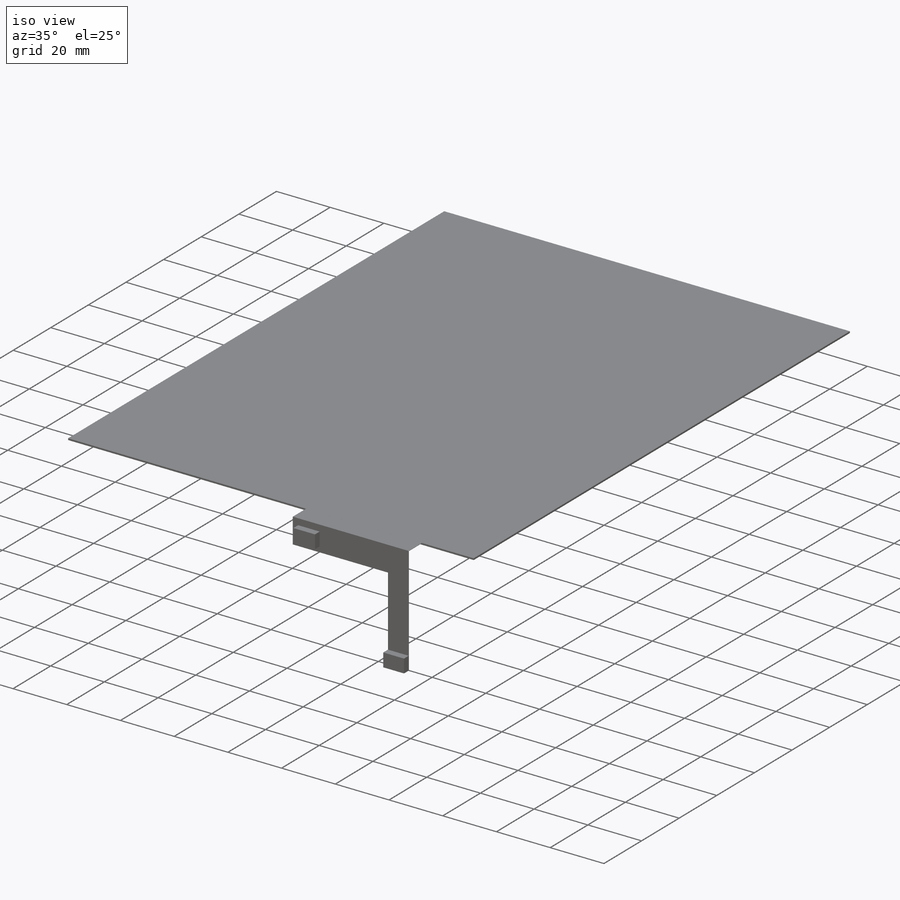
[diagram: iso view]
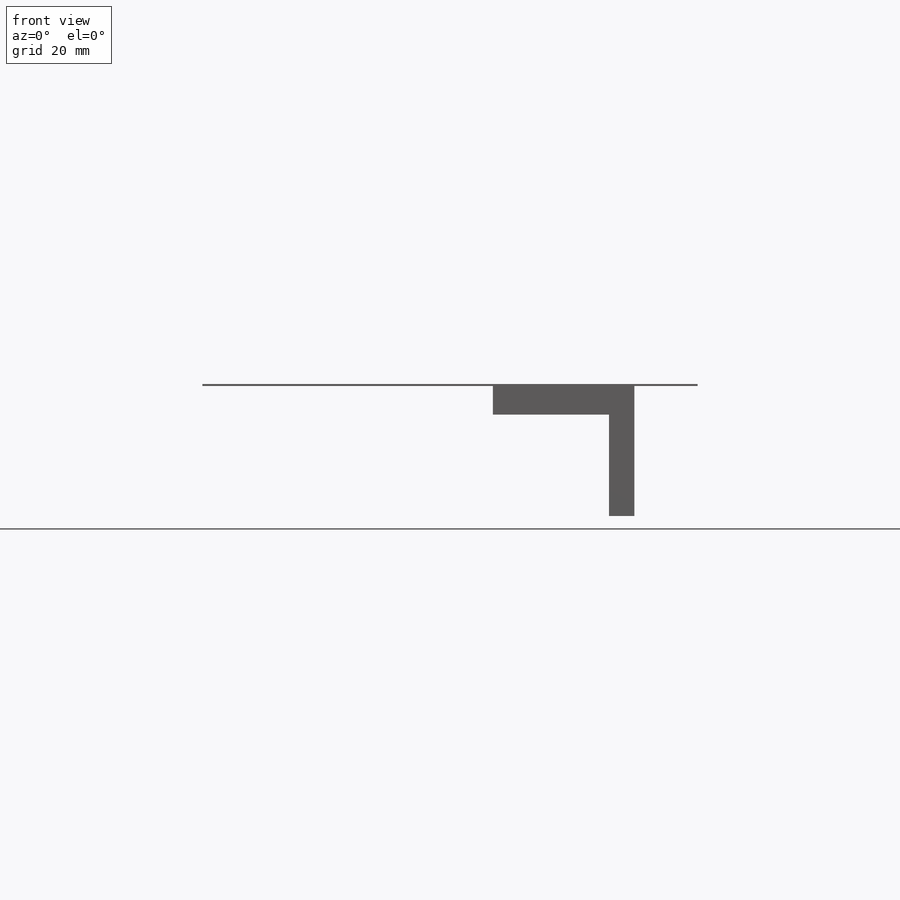
[diagram: front view]
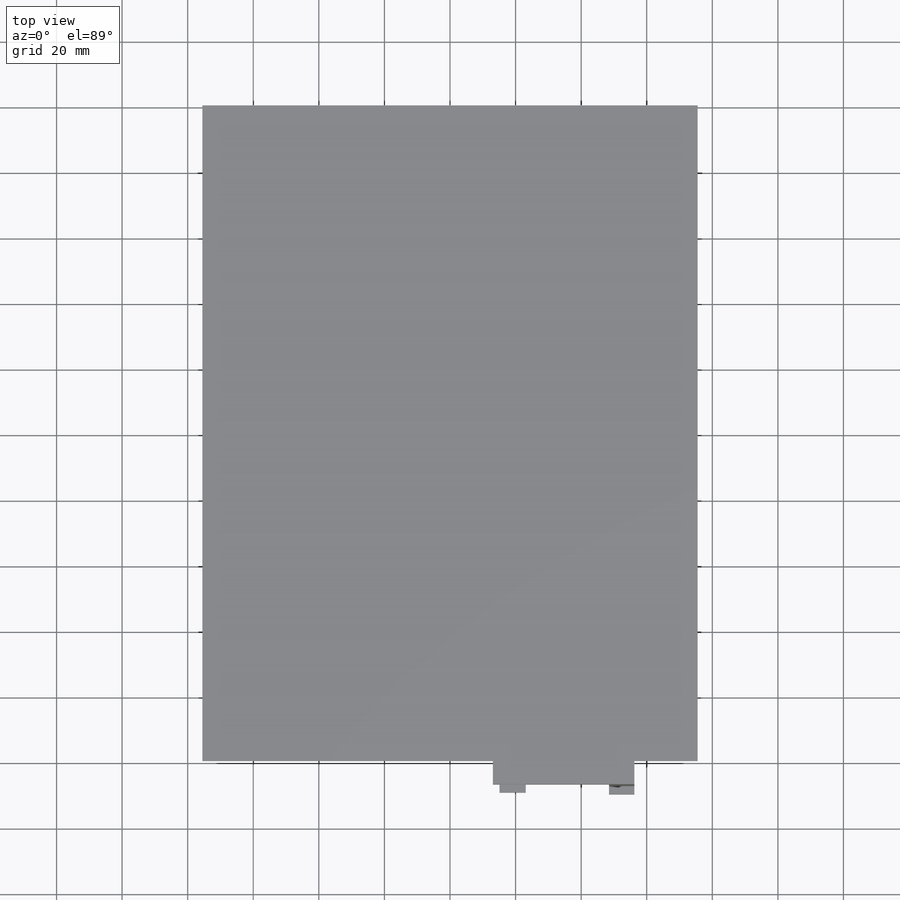
[diagram: top view]
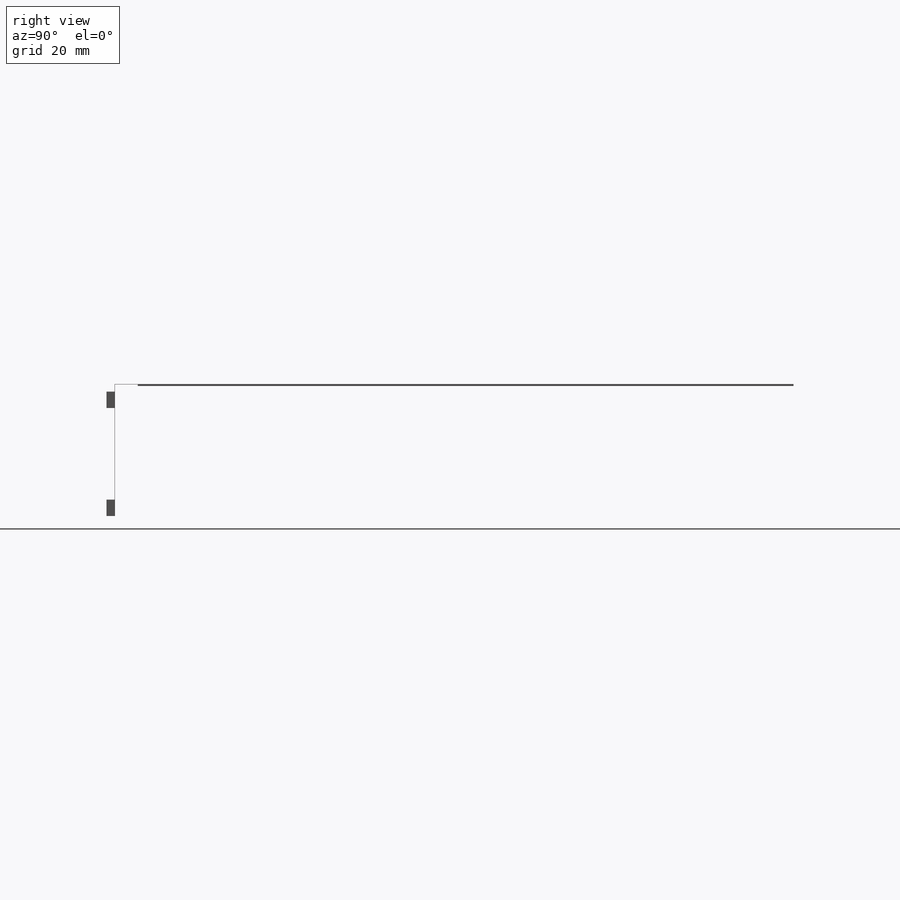
[diagram: right view]
SOLIDWORKS PART (.sldprt)
format: sldprt  version: not decoded by parser v0  size: 169,984 bytes
history: native  units: mm
features: sketch x4, extrude x4, plane x3, material x1 (+10 scaffold rows collapsed)
feature tree (22):
  scaffold x10  (default folders/planes/origin — collapsed)
  material  "PA Tipo 6"
  plane  "Alzado"
  plane  "Planta"
  plane  "Vista lateral"
  sketch  "Croquis1"  dims[D1=151.0mm D2=200.0mm]
  extrude  "Saliente-Extruir1"  Depth=0.6mm
  sketch  "Croquis4"
  extrude  "Saliente-Extruir2"  Depth=0.1mm
  sketch  "Croquis5"
  extrude  "Saliente-Extruir3"  Depth=0.1mm
  sketch  "Croquis7"  dims[D1=5.0mm D2=5.0mm D3=8.0mm D4=2.0mm D5=2.0mm]
  extrude  "Saliente-Extruir5"  Depth=2.5mm
decode coverage: 6 of 8 modeling features carry decoded parameters
note: suppression state not decoded; provenance and decode notes live in map.json
